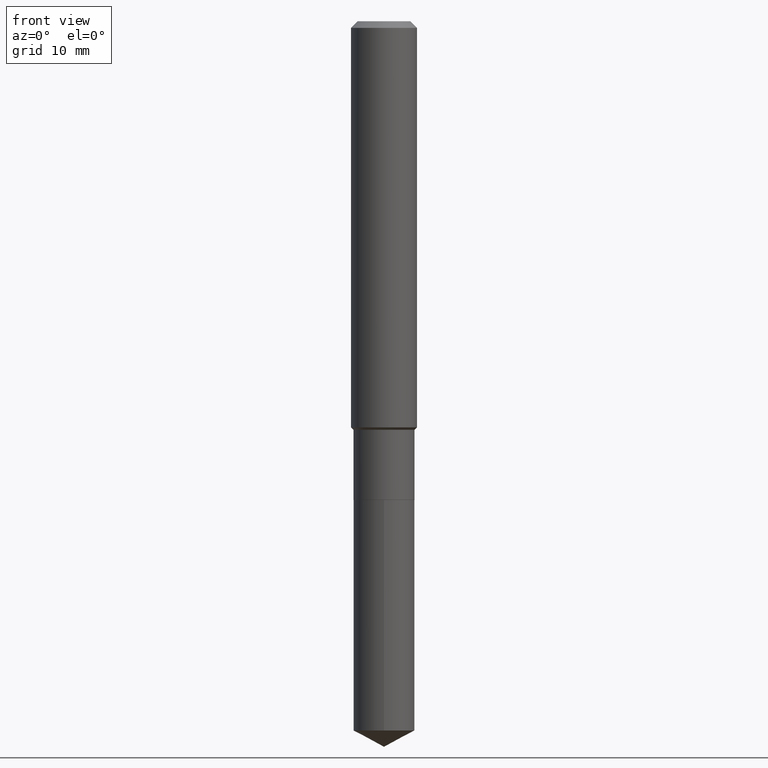
[diagram: clean part render]
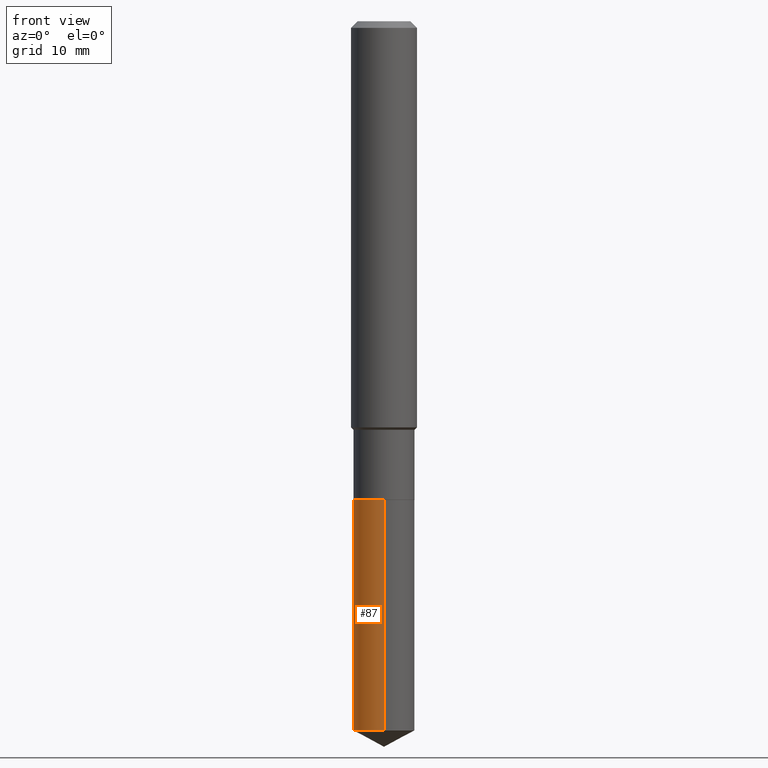
[diagram: same view with one face highlighted and labeled with its STEP entity id]
A machine part, front view. The second image highlights one B-rep face of the part: STEP entity #87.
In plain terms, the highlighted cylindrical surface (edge-blend (fillet) strip) has radius 2.7788 mm, axis along (-0, 0, 1).
Its self-contained STEP definition (entity closure, byte-faithful):
#3 = ORIENTED_EDGE ( 'NONE', *, *, #252, .F. ) ;
#17 = CIRCLE ( 'NONE', #119, 0.1093999999999999972 ) ;
#18 = CARTESIAN_POINT ( 'NONE',  ( -7.639361169388354664E-16, -0.1094000000000059925, -1.714799999999999436 ) ) ;
#43 = EDGE_CURVE ( 'NONE', #247, #436, #376, .T. ) ;
#46 = DIRECTION ( 'NONE',  ( -6.982962677686265922E-15, -1.000000000000000000, 2.497118824190368439E-15 ) ) ;
#53 = CARTESIAN_POINT ( 'NONE',  ( 6.212061172154443697E-29, -8.869161172201118079E-15, -2.540230988176234384 ) ) ;
#87 = ADVANCED_FACE ( 'NONE', ( #409 ), #107, .T. ) ;
#88 = LINE ( 'NONE', #399, #206 ) ;
#107 = CYLINDRICAL_SURFACE ( 'NONE', #377, 0.1093999999999999972 ) ;
#119 = AXIS2_PLACEMENT_3D ( 'NONE', #237, #387, #46 ) ;
#134 = ORIENTED_EDGE ( 'NONE', *, *, #463, .T. ) ;
#135 = CARTESIAN_POINT ( 'NONE',  ( -7.639361169388152518E-16, -0.1094000000000088374, -2.540230988176233495 ) ) ;
#137 = DIRECTION ( 'NONE',  ( -6.982962677686265922E-15, -1.000000000000000000, 2.497118824190368439E-15 ) ) ;
#158 = EDGE_LOOP ( 'NONE', ( #397, #134, #429, #3 ) ) ;
#180 = DIRECTION ( 'NONE',  ( -2.445475505793823769E-29, 3.491471744622187291E-15, 1.000000000000000000 ) ) ;
#186 = DIRECTION ( 'NONE',  ( -2.445475505793823769E-29, 3.491471744622187291E-15, 1.000000000000000000 ) ) ;
#206 = VECTOR ( 'NONE', #462, 39.37007874015748143 ) ;
#237 = CARTESIAN_POINT ( 'NONE',  ( 4.193489908846271627E-29, -5.987192199848224509E-15, -1.714799999999999658 ) ) ;
#247 = VERTEX_POINT ( 'NONE', #423 ) ;
#252 = EDGE_CURVE ( 'NONE', #436, #431, #17, .T. ) ;
#345 = CARTESIAN_POINT ( 'NONE',  ( 4.193489908846271627E-29, -5.987192199848224509E-15, -1.714799999999999658 ) ) ;
#369 = AXIS2_PLACEMENT_3D ( 'NONE', #53, #433, #435 ) ;
#376 = LINE ( 'NONE', #484, #424 ) ;
#377 = AXIS2_PLACEMENT_3D ( 'NONE', #345, #186, #137 ) ;
#387 = DIRECTION ( 'NONE',  ( -2.445475505793823769E-29, 3.491471744622187291E-15, 1.000000000000000000 ) ) ;
#391 = VERTEX_POINT ( 'NONE', #135 ) ;
#397 = ORIENTED_EDGE ( 'NONE', *, *, #43, .F. ) ;
#399 = CARTESIAN_POINT ( 'NONE',  ( -7.639361169388354664E-16, -0.1094000000000059925, -1.714799999999999436 ) ) ;
#403 = CARTESIAN_POINT ( 'NONE',  ( 7.773337529216117066E-16, 0.1093999999999940020, -1.714799999999999880 ) ) ;
#409 = FACE_OUTER_BOUND ( 'NONE', #158, .T. ) ;
#413 = EDGE_CURVE ( 'NONE', #391, #431, #88, .T. ) ;
#423 = CARTESIAN_POINT ( 'NONE',  ( 7.773337529216115094E-16, 0.1093999999999911155, -2.540230988176234828 ) ) ;
#424 = VECTOR ( 'NONE', #180, 39.37007874015748143 ) ;
#429 = ORIENTED_EDGE ( 'NONE', *, *, #413, .T. ) ;
#431 = VERTEX_POINT ( 'NONE', #18 ) ;
#433 = DIRECTION ( 'NONE',  ( -2.445475505793823769E-29, 3.491471744622187291E-15, 1.000000000000000000 ) ) ;
#435 = DIRECTION ( 'NONE',  ( -6.982962677686265922E-15, -1.000000000000000000, 4.994237648380736877E-15 ) ) ;
#436 = VERTEX_POINT ( 'NONE', #403 ) ;
#458 = CIRCLE ( 'NONE', #369, 0.1093999999999999972 ) ;
#462 = DIRECTION ( 'NONE',  ( -2.445475505793823769E-29, 3.491471744622187291E-15, 1.000000000000000000 ) ) ;
#463 = EDGE_CURVE ( 'NONE', #247, #391, #458, .T. ) ;
#484 = CARTESIAN_POINT ( 'NONE',  ( 7.773337529215914920E-16, 0.1093999999999940020, -1.714799999999999880 ) ) ;